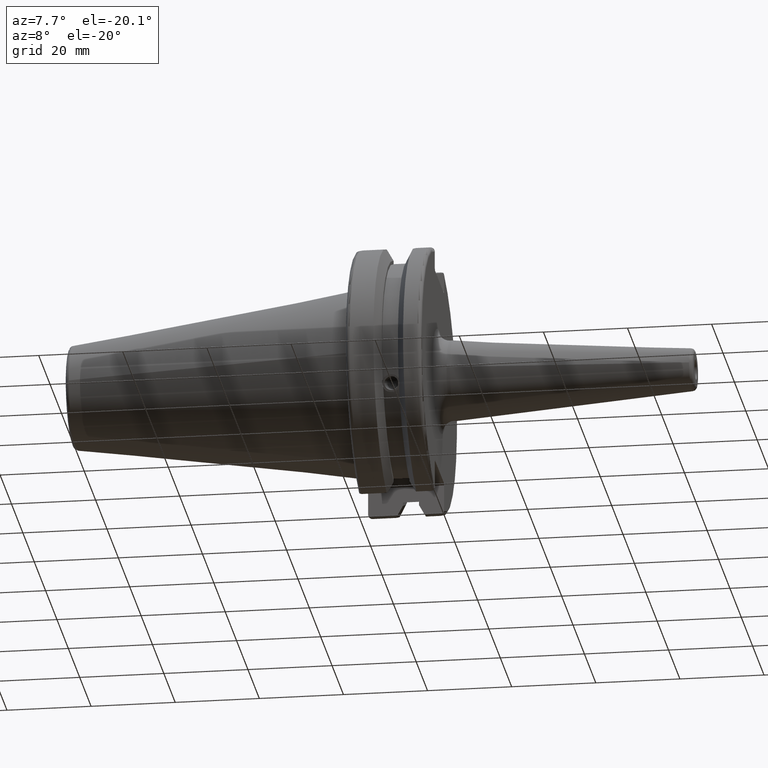
[diagram: clean part render]
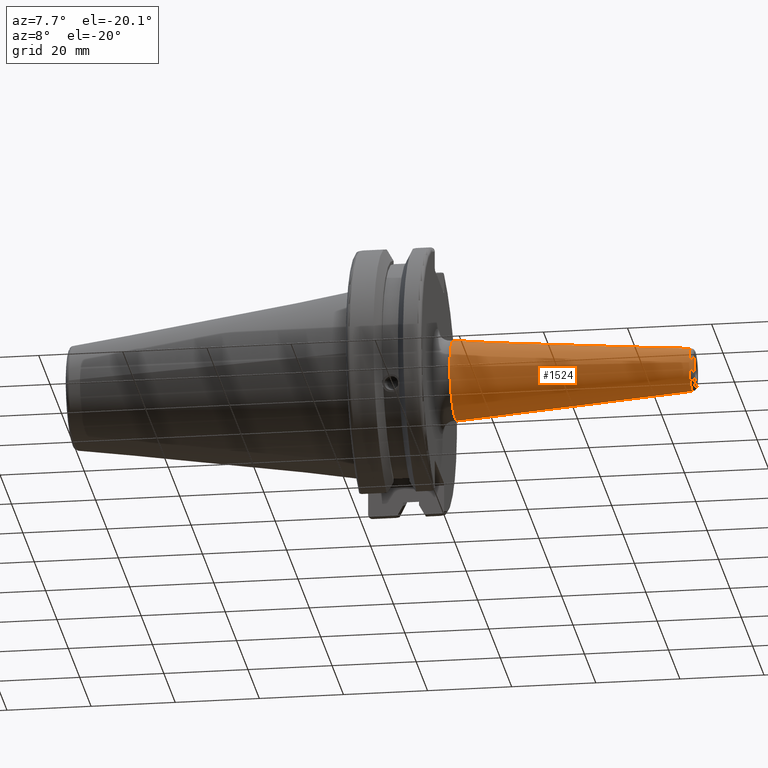
[diagram: same view with one face highlighted and labeled with its STEP entity id]
A machine part, auxiliary view. The second image highlights one B-rep face of the part: STEP entity #1524.
In plain terms, the highlighted conical surface has half-angle 4.5 deg.
Its self-contained STEP definition (entity closure, byte-faithful):
#163=LINE('',#2292,#261);
#261=VECTOR('',#1831,7.25000000000001);
#359=CONICAL_SURFACE('',#1640,7.25000000000001,0.0785398163397453);
#376=FACE_OUTER_BOUND('',#465,.T.);
#465=EDGE_LOOP('',(#1042,#1043,#1044,#1045,#1046));
#569=CIRCLE('',#1638,5.07252684207494);
#570=CIRCLE('',#1639,5.07252684207494);
#571=CIRCLE('',#1641,9.5);
#643=VERTEX_POINT('',#2285);
#644=VERTEX_POINT('',#2287);
#645=VERTEX_POINT('',#2291);
#800=EDGE_CURVE('',#643,#644,#569,.T.);
#801=EDGE_CURVE('',#644,#643,#570,.T.);
#802=EDGE_CURVE('',#644,#645,#163,.T.);
#803=EDGE_CURVE('',#645,#645,#571,.T.);
#1042=ORIENTED_EDGE('',*,*,#801,.F.);
#1043=ORIENTED_EDGE('',*,*,#802,.T.);
#1044=ORIENTED_EDGE('',*,*,#803,.T.);
#1045=ORIENTED_EDGE('',*,*,#802,.F.);
#1046=ORIENTED_EDGE('',*,*,#800,.F.);
#1524=ADVANCED_FACE('',(#376),#359,.T.);
#1638=AXIS2_PLACEMENT_3D('',#2288,#1825,#1826);
#1639=AXIS2_PLACEMENT_3D('',#2289,#1827,#1828);
#1640=AXIS2_PLACEMENT_3D('',#2290,#1829,#1830);
#1641=AXIS2_PLACEMENT_3D('',#2293,#1832,#1833);
#1825=DIRECTION('center_axis',(1.,0.,0.));
#1826=DIRECTION('ref_axis',(0.,-1.,3.06161699786838E-17));
#1827=DIRECTION('center_axis',(1.,0.,0.));
#1828=DIRECTION('ref_axis',(0.,-1.,3.06161699786838E-17));
#1829=DIRECTION('center_axis',(-1.,0.,0.));
#1830=DIRECTION('ref_axis',(0.,1.,0.));
#1831=DIRECTION('',(-0.996917333733128,-0.0784590957278454,-9.60846804471017E-18));
#1832=DIRECTION('center_axis',(1.,0.,0.));
#1833=DIRECTION('ref_axis',(0.,0.,-1.));
#2285=CARTESIAN_POINT('',(79.0784590957278,-6.2120537607361E-16,5.07252684207494));
#2287=CARTESIAN_POINT('',(79.0784590957278,-5.07252684207494,-6.21205376073611E-16));
#2288=CARTESIAN_POINT('Origin',(79.0784590957278,0.,-7.76506720092013E-16));
#2289=CARTESIAN_POINT('Origin',(79.0784590957278,0.,-7.76506720092013E-16));
#2290=CARTESIAN_POINT('Origin',(51.4110393436072,0.,0.));
#2291=CARTESIAN_POINT('',(22.8220786872144,-9.5,-1.16341445918999E-15));
#2292=CARTESIAN_POINT('',(51.4110393436072,-7.25000000000001,-8.87868929381832E-16));
#2293=CARTESIAN_POINT('Origin',(22.8220786872144,0.,0.));